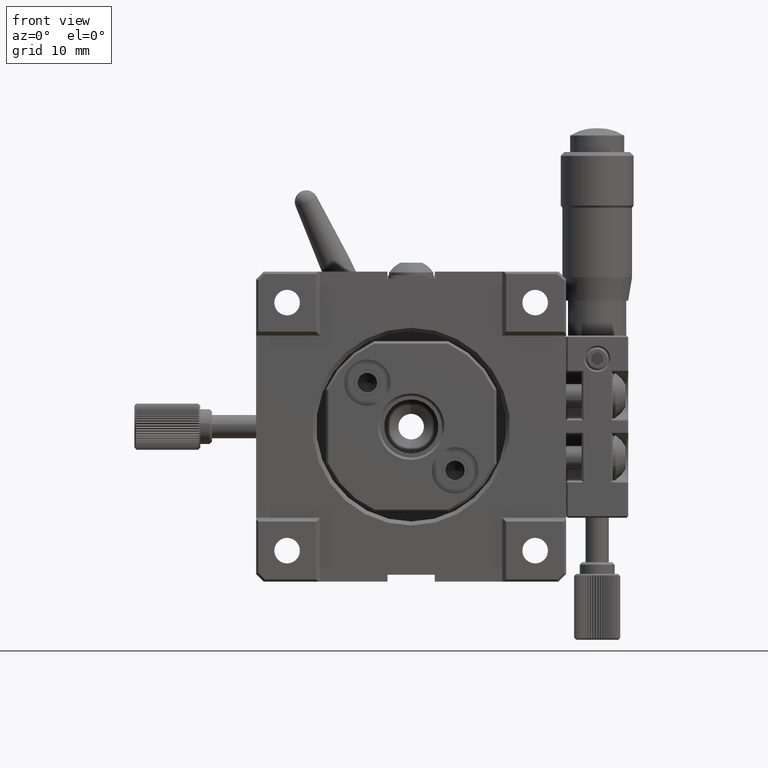
[diagram: clean part render]
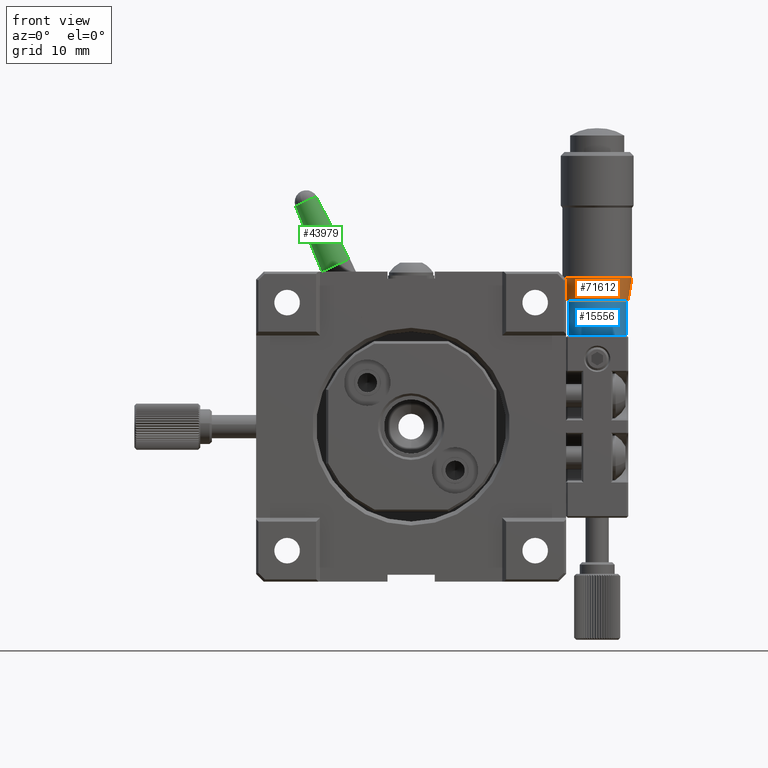
[diagram: same view with three faces highlighted in distinct colors, each labeled with its STEP entity id]
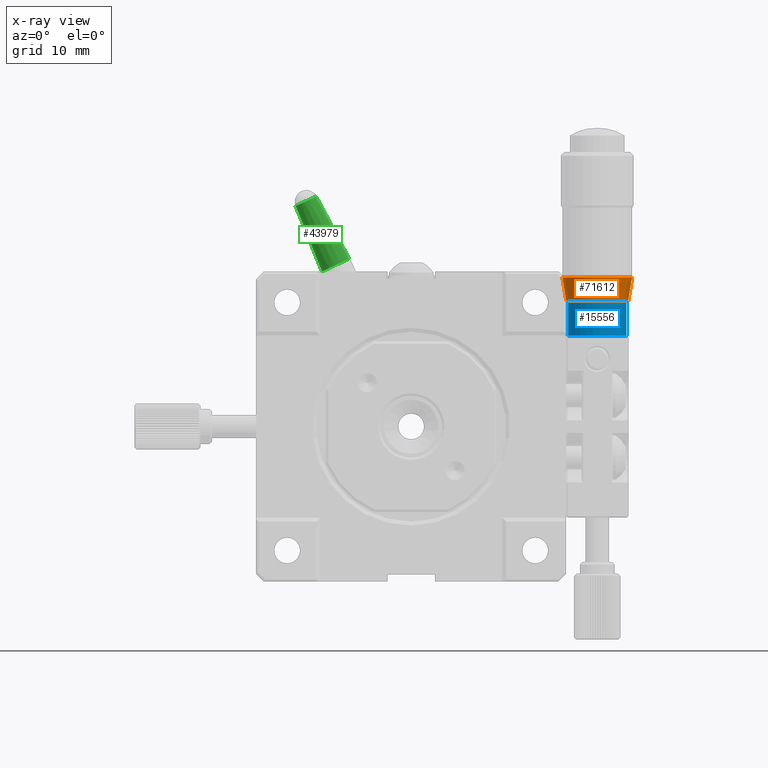
[diagram: x-ray of the same camera — body ghosted, the three highlighted faces saturated]
A machine part, front view with three faces highlighted in distinct colors.
The next image is the same camera in x-ray (body ghosted, the three faces saturated) — at least one of them is partly hidden behind the body in this view.
Their STEP definitions:

[orange] entity #71612 — the highlighted conical surface has half-angle 9.462 deg.
#285 = VERTEX_POINT ( 'NONE', #2328 ) ;
#1344 = ORIENTED_EDGE ( 'NONE', *, *, #23506, .T. ) ;
#2328 = CARTESIAN_POINT ( 'NONE',  ( 20.00199463509364861, 10.62630559045373957, 16.25000000000000000 ) ) ;
#4261 = LINE ( 'NONE', #10411, #26883 ) ;
#10411 = CARTESIAN_POINT ( 'NONE',  ( 28.49775603551965020, 10.35790621073954121, 19.25000000000000000 ) ) ;
#11626 = AXIS2_PLACEMENT_3D ( 'NONE', #12130, #23213, #36357 ) ;
#11850 = CARTESIAN_POINT ( 'NONE',  ( 19.50224396448034980, 10.64209378926043925, 19.25000000000000000 ) ) ;
#12130 = CARTESIAN_POINT ( 'NONE',  ( 24.00000000000000000, 10.50000000000000000, 16.25000000000000000 ) ) ;
#19509 = DIRECTION ( 'NONE',  ( 0.9995013412265930652, -0.03157639761343328938, 0.000000000000000000 ) ) ;
#21764 = VERTEX_POINT ( 'NONE', #61788 ) ;
#23105 = DIRECTION ( 'NONE',  ( 0.1643170083079979749, -0.005191127790399979215, 0.9863939238321437486 ) ) ;
#23213 = DIRECTION ( 'NONE',  ( 8.746943706174540308E-18, 2.768707840895594647E-16, -1.000000000000000000 ) ) ;
#23506 = EDGE_CURVE ( 'NONE', #21764, #57958, #4261, .T. ) ;
#24561 = DIRECTION ( 'NONE',  ( -0.1643170083079979749, 0.005191127790399458798, 0.9863939238321437486 ) ) ;
#26883 = VECTOR ( 'NONE', #23105, 1000.000000000000000 ) ;
#29170 = ORIENTED_EDGE ( 'NONE', *, *, #79394, .F. ) ;
#30463 = CONICAL_SURFACE ( 'NONE', #80329, 4.500000000000000000, 0.1651486774146265213 ) ;
#30720 = CARTESIAN_POINT ( 'NONE',  ( 28.49775603551965020, 10.35790621073954121, 19.25000000000000000 ) ) ;
#32406 = CIRCLE ( 'NONE', #79661, 4.500000000000000000 ) ;
#35712 = ORIENTED_EDGE ( 'NONE', *, *, #78130, .T. ) ;
#36357 = DIRECTION ( 'NONE',  ( -0.9995013412265930652, 0.03157639761343324775, 0.000000000000000000 ) ) ;
#38393 = DIRECTION ( 'NONE',  ( -0.9995013412265930652, 0.03157639761343328938, 0.000000000000000000 ) ) ;
#44540 = CARTESIAN_POINT ( 'NONE',  ( 24.00000000000000000, 10.50000000000000000, 19.25000000000000000 ) ) ;
#56864 = CARTESIAN_POINT ( 'NONE',  ( 24.00000000000000000, 10.50000000000000000, 19.25000000000000000 ) ) ;
#57958 = VERTEX_POINT ( 'NONE', #30720 ) ;
#61426 = DIRECTION ( 'NONE',  ( -8.746943706174549552E-18, -2.768707840895594647E-16, 1.000000000000000000 ) ) ;
#61788 = CARTESIAN_POINT ( 'NONE',  ( 27.99800536490640113, 10.37369440954625865, 16.25000000000000000 ) ) ;
#63438 = DIRECTION ( 'NONE',  ( 8.746943706174549552E-18, 2.768707840895594647E-16, -1.000000000000000000 ) ) ;
#66028 = EDGE_CURVE ( 'NONE', #21764, #285, #81150, .T. ) ;
#70604 = VECTOR ( 'NONE', #24561, 1000.000000000000000 ) ;
#70928 = VERTEX_POINT ( 'NONE', #71039 ) ;
#71039 = CARTESIAN_POINT ( 'NONE',  ( 19.50224396448034980, 10.64209378926043925, 19.25000000000000000 ) ) ;
#71612 = ADVANCED_FACE ( 'NONE', ( #75787 ), #30463, .T. ) ;
#72344 = EDGE_LOOP ( 'NONE', ( #29170, #81129, #1344, #35712 ) ) ;
#75787 = FACE_OUTER_BOUND ( 'NONE', #72344, .T. ) ;
#78130 = EDGE_CURVE ( 'NONE', #57958, #70928, #32406, .T. ) ;
#79394 = EDGE_CURVE ( 'NONE', #285, #70928, #80830, .T. ) ;
#79661 = AXIS2_PLACEMENT_3D ( 'NONE', #44540, #63438, #38393 ) ;
#80329 = AXIS2_PLACEMENT_3D ( 'NONE', #56864, #61426, #19509 ) ;
#80830 = LINE ( 'NONE', #11850, #70604 ) ;
#81129 = ORIENTED_EDGE ( 'NONE', *, *, #66028, .F. ) ;
#81150 = CIRCLE ( 'NONE', #11626, 3.999999999999999112 ) ;

[blue] entity #15556 — the highlighted cylindrical surface (edge-blend (fillet) strip) has radius 3.75 mm, axis along (0, 0, -1).
#668 = CIRCLE ( 'NONE', #20328, 3.750000000000000444 ) ;
#1160 = DIRECTION ( 'NONE',  ( 8.746943706174529523E-18, 2.768707840895594647E-16, -1.000000000000000000 ) ) ;
#2612 = EDGE_CURVE ( 'NONE', #63312, #60502, #40215, .T. ) ;
#3083 = LINE ( 'NONE', #28483, #19979 ) ;
#8936 = CARTESIAN_POINT ( 'NONE',  ( 20.25186997040029979, 10.61841149105038085, 11.75000000000000000 ) ) ;
#12331 = ORIENTED_EDGE ( 'NONE', *, *, #38985, .F. ) ;
#12794 = AXIS2_PLACEMENT_3D ( 'NONE', #14268, #1160, #44655 ) ;
#13284 = CARTESIAN_POINT ( 'NONE',  ( 20.25186997040029979, 10.61841149105038085, 16.25000000000000000 ) ) ;
#13934 = EDGE_LOOP ( 'NONE', ( #49579, #76286, #62416, #12331 ) ) ;
#14268 = CARTESIAN_POINT ( 'NONE',  ( 24.00000000000000000, 10.50000000000000000, -39.18690227006035087 ) ) ;
#14776 = DIRECTION ( 'NONE',  ( -0.9995013412265929542, 0.03157639761343320611, 0.000000000000000000 ) ) ;
#15556 = ADVANCED_FACE ( 'NONE', ( #33537 ), #26572, .T. ) ;
#15560 = DIRECTION ( 'NONE',  ( -1.293477273850499982E-17, 2.775557561562890365E-16, -1.000000000000000000 ) ) ;
#19979 = VECTOR ( 'NONE', #28082, 1000.000000000000000 ) ;
#20328 = AXIS2_PLACEMENT_3D ( 'NONE', #71461, #51723, #14776 ) ;
#24941 = CARTESIAN_POINT ( 'NONE',  ( 27.74813002959974995, 10.38158850894959961, 11.75000000000000000 ) ) ;
#26572 = CYLINDRICAL_SURFACE ( 'NONE', #12794, 3.750000000000000444 ) ;
#27088 = VECTOR ( 'NONE', #15560, 1000.000000000000000 ) ;
#27291 = AXIS2_PLACEMENT_3D ( 'NONE', #37642, #56116, #62692 ) ;
#28082 = DIRECTION ( 'NONE',  ( -1.293477273850499982E-17, 2.775557561562890365E-16, -1.000000000000000000 ) ) ;
#28483 = CARTESIAN_POINT ( 'NONE',  ( 20.25186997040029979, 10.61841149105038085, -39.18690227006035087 ) ) ;
#33537 = FACE_OUTER_BOUND ( 'NONE', #13934, .T. ) ;
#35343 = VERTEX_POINT ( 'NONE', #8936 ) ;
#37642 = CARTESIAN_POINT ( 'NONE',  ( 24.00000000000000000, 10.50000000000000000, 11.75000000000000000 ) ) ;
#38985 = EDGE_CURVE ( 'NONE', #60502, #35343, #52195, .T. ) ;
#40215 = LINE ( 'NONE', #46761, #27088 ) ;
#44655 = DIRECTION ( 'NONE',  ( -0.9995013412265929542, 0.03157639761343320611, 0.000000000000000000 ) ) ;
#46761 = CARTESIAN_POINT ( 'NONE',  ( 27.74813002959974995, 10.38158850894962093, -39.18690227006035087 ) ) ;
#49461 = VERTEX_POINT ( 'NONE', #13284 ) ;
#49579 = ORIENTED_EDGE ( 'NONE', *, *, #2612, .F. ) ;
#51723 = DIRECTION ( 'NONE',  ( 8.746943706174529523E-18, 2.768707840895594647E-16, -1.000000000000000000 ) ) ;
#52195 = CIRCLE ( 'NONE', #27291, 3.750000000000000444 ) ;
#56116 = DIRECTION ( 'NONE',  ( 8.746943706174529523E-18, 2.768707840895594647E-16, -1.000000000000000000 ) ) ;
#60502 = VERTEX_POINT ( 'NONE', #24941 ) ;
#62416 = ORIENTED_EDGE ( 'NONE', *, *, #71844, .T. ) ;
#62692 = DIRECTION ( 'NONE',  ( -0.9995013412265929542, 0.03157639761343320611, 0.000000000000000000 ) ) ;
#63312 = VERTEX_POINT ( 'NONE', #66017 ) ;
#66017 = CARTESIAN_POINT ( 'NONE',  ( 27.74813002959974995, 10.38158850894959961, 16.25000000000000000 ) ) ;
#71461 = CARTESIAN_POINT ( 'NONE',  ( 24.00000000000000000, 10.50000000000000000, 16.25000000000000000 ) ) ;
#71844 = EDGE_CURVE ( 'NONE', #49461, #35343, #3083, .T. ) ;
#74780 = EDGE_CURVE ( 'NONE', #63312, #49461, #668, .T. ) ;
#76286 = ORIENTED_EDGE ( 'NONE', *, *, #74780, .T. ) ;

[green] entity #43979 — the highlighted conical surface has half-angle 3.152 deg.
#706 = CARTESIAN_POINT ( 'NONE',  ( -11.42424568592976009, 18.38184090813599880, 20.05047888414410195 ) ) ;
#1248 = DIRECTION ( 'NONE',  ( -0.8520128329469336403, 0.3409204540679998119, -0.3973001088494810817 ) ) ;
#1394 = DIRECTION ( 'NONE',  ( 0.3751346444923853163, 0.01874408814639024271, -0.9267808034595514943 ) ) ;
#1838 = EDGE_CURVE ( 'NONE', #8363, #76788, #50653, .T. ) ;
#5085 = DIRECTION ( 'NONE',  ( -0.8520128329469336403, 0.3409204540679998119, -0.3973001088494810817 ) ) ;
#5169 = VERTEX_POINT ( 'NONE', #706 ) ;
#6250 = ORIENTED_EDGE ( 'NONE', *, *, #53396, .F. ) ;
#8363 = VERTEX_POINT ( 'NONE', #81049 ) ;
#9359 = EDGE_CURVE ( 'NONE', #8363, #16359, #21539, .T. ) ;
#12797 = CARTESIAN_POINT ( 'NONE',  ( -9.720220020035888808, 17.69999999999999929, 20.84507910184305146 ) ) ;
#13140 = DIRECTION ( 'NONE',  ( 0.4226182617406910036, 2.467162276944789710E-17, -0.9063077870366540445 ) ) ;
#13664 = CARTESIAN_POINT ( 'NONE',  ( -8.016194354142038847, 17.01815909186399622, 21.63967931954199742 ) ) ;
#14982 = DIRECTION ( 'NONE',  ( 0.4688233830356446363, -0.01874408814639023924, -0.8830930271939495535 ) ) ;
#15275 = AXIS2_PLACEMENT_3D ( 'NONE', #80615, #74477, #5085 ) ;
#16359 = VERTEX_POINT ( 'NONE', #13664 ) ;
#17748 = DIRECTION ( 'NONE',  ( -0.8520128329469340844, 0.3409204540679983686, -0.3973001088494813593 ) ) ;
#19815 = CARTESIAN_POINT ( 'NONE',  ( -14.83574995165236032, 18.21138068110199981, 28.47869715406784863 ) ) ;
#20956 = AXIS2_PLACEMENT_3D ( 'NONE', #68603, #13140, #1248 ) ;
#21539 = LINE ( 'NONE', #70874, #56468 ) ;
#24878 = FACE_OUTER_BOUND ( 'NONE', #59007, .T. ) ;
#24891 = EDGE_CURVE ( 'NONE', #76788, #73123, #56373, .T. ) ;
#26783 = LINE ( 'NONE', #58806, #73815 ) ;
#28870 = EDGE_CURVE ( 'NONE', #73123, #5169, #26783, .T. ) ;
#30269 = CONICAL_SURFACE ( 'NONE', #46042, 1.500000000000000666, 0.05500856387008695031 ) ;
#31678 = DIRECTION ( 'NONE',  ( 0.4226182617406910036, -2.775557561562895049E-17, -0.9063077870366540445 ) ) ;
#32943 = ORIENTED_EDGE ( 'NONE', *, *, #9359, .F. ) ;
#38964 = AXIS2_PLACEMENT_3D ( 'NONE', #12797, #31678, #17748 ) ;
#43979 = ADVANCED_FACE ( 'NONE', ( #24878 ), #30269, .T. ) ;
#44567 = DIRECTION ( 'NONE',  ( 0.4226182617406910036, 2.467162276944789710E-17, -0.9063077870366540445 ) ) ;
#46042 = AXIS2_PLACEMENT_3D ( 'NONE', #68428, #44567, #49904 ) ;
#46243 = CARTESIAN_POINT ( 'NONE',  ( -14.02119899565479955, 16.28986178018050168, 28.85852850280695137 ) ) ;
#47146 = ORIENTED_EDGE ( 'NONE', *, *, #28870, .T. ) ;
#49904 = DIRECTION ( 'NONE',  ( -0.8520128329469336403, 0.3409204540679998119, -0.3973001088494810817 ) ) ;
#50653 = CIRCLE ( 'NONE', #15275, 1.500000000000000666 ) ;
#53396 = EDGE_CURVE ( 'NONE', #16359, #5169, #61294, .T. ) ;
#56373 = CIRCLE ( 'NONE', #20956, 1.500000000000000666 ) ;
#56468 = VECTOR ( 'NONE', #14982, 999.9999999999998863 ) ;
#58806 = CARTESIAN_POINT ( 'NONE',  ( -14.83574995165236032, 18.21138068110199981, 28.47869715406784863 ) ) ;
#59007 = EDGE_LOOP ( 'NONE', ( #32943, #62871, #78719, #47146, #6250 ) ) ;
#61294 = CIRCLE ( 'NONE', #38964, 1.999999999999999334 ) ;
#62871 = ORIENTED_EDGE ( 'NONE', *, *, #1838, .T. ) ;
#68428 = CARTESIAN_POINT ( 'NONE',  ( -13.55773070223195909, 17.69999999999999929, 29.07464731734205188 ) ) ;
#68603 = CARTESIAN_POINT ( 'NONE',  ( -13.55773070223195909, 17.69999999999999929, 29.07464731734205188 ) ) ;
#70874 = CARTESIAN_POINT ( 'NONE',  ( -12.27971145281155962, 17.18861931889799877, 29.67059748061629776 ) ) ;
#73123 = VERTEX_POINT ( 'NONE', #19815 ) ;
#73815 = VECTOR ( 'NONE', #1394, 1000.000000000000227 ) ;
#74477 = DIRECTION ( 'NONE',  ( 0.4226182617406910036, 2.467162276944789710E-17, -0.9063077870366540445 ) ) ;
#76788 = VERTEX_POINT ( 'NONE', #46243 ) ;
#78719 = ORIENTED_EDGE ( 'NONE', *, *, #24891, .T. ) ;
#80615 = CARTESIAN_POINT ( 'NONE',  ( -13.55773070223195909, 17.69999999999999929, 29.07464731734205188 ) ) ;
#81049 = CARTESIAN_POINT ( 'NONE',  ( -12.27971145281155962, 17.18861931889799877, 29.67059748061629776 ) ) ;